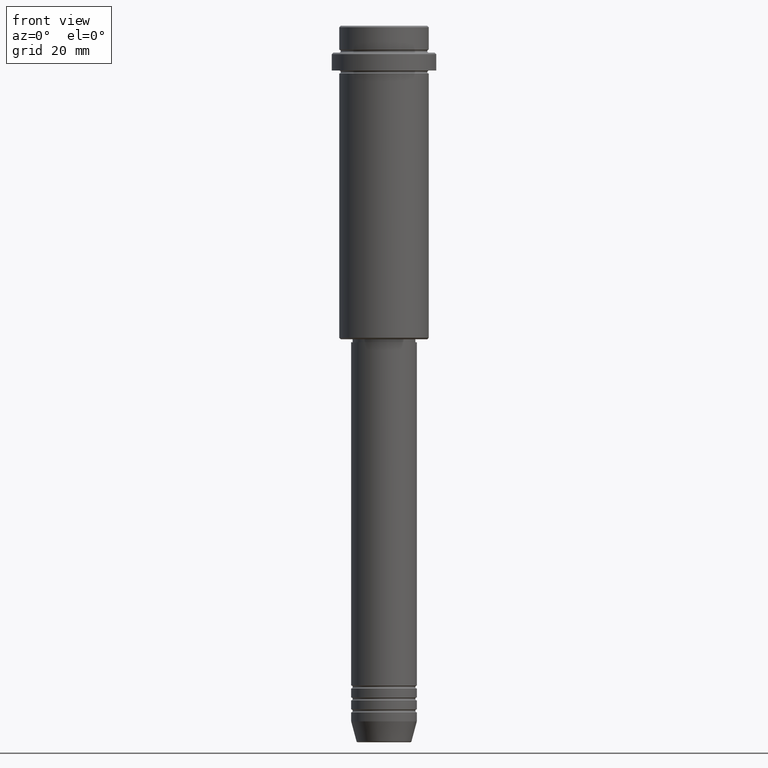
[diagram: clean part render]
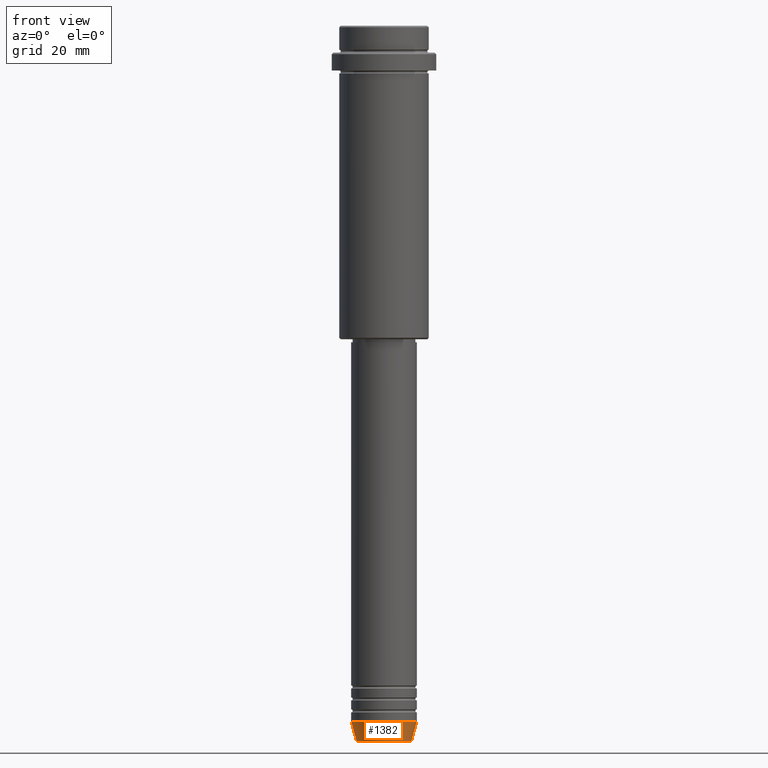
[diagram: same view with one face highlighted and labeled with its STEP entity id]
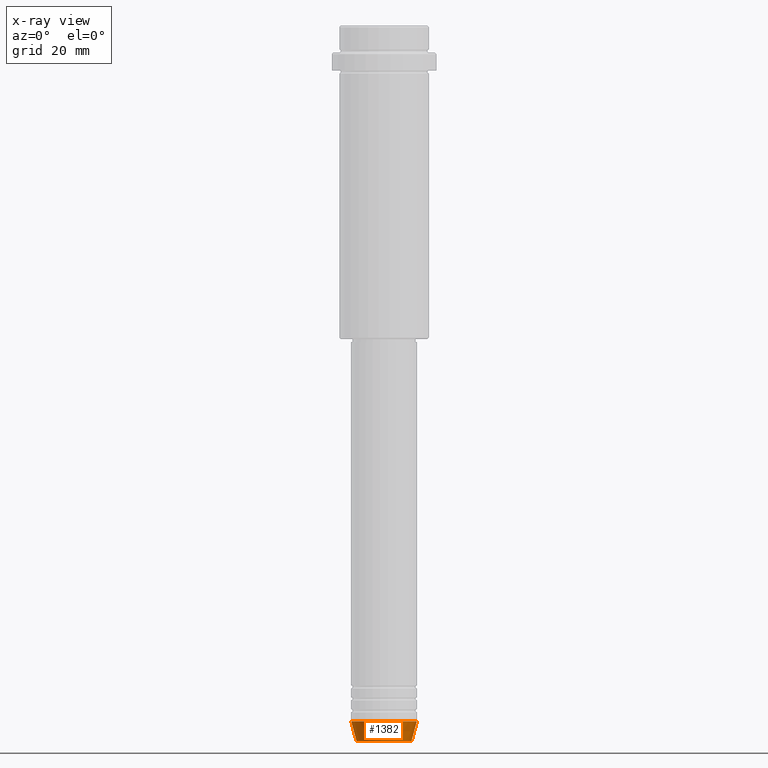
[diagram: x-ray of the same camera — body ghosted, the highlighted face saturated]
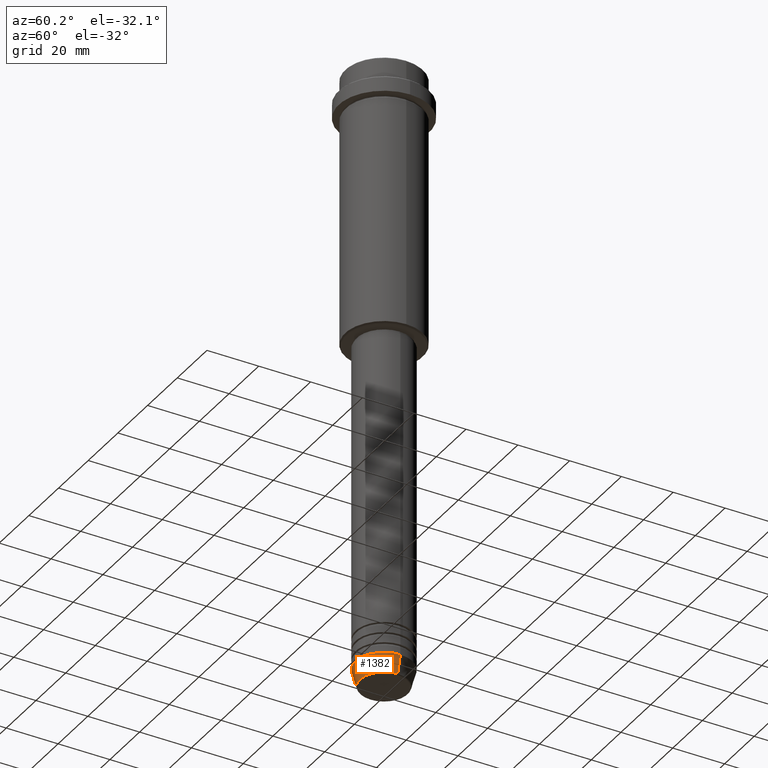
[diagram: same view with one face highlighted and labeled with its STEP entity id]
A machine part, front view. The second image highlights one B-rep face of the part: STEP entity #1382.
The next image is the same camera in x-ray: the body ghosted, the highlighted face saturated — about 0% of this face is hidden behind the body in this view.
A second angle (auxiliary view) of the same face is appended — the face is thin or edge-on in the first view.
In plain terms, the highlighted conical surface has half-angle 15 deg.
Its self-contained STEP definition (entity closure, byte-faithful):
#44 = CARTESIAN_POINT ( 'NONE',  ( 0.000000000000000000, 0.000000000000000000, -233.0000000000000284 ) ) ;
#83 = CARTESIAN_POINT ( 'NONE',  ( -11.00000000000000000, 1.347111479062088405E-15, -233.0000000000000284 ) ) ;
#192 = VERTEX_POINT ( 'NONE', #834 ) ;
#223 = EDGE_CURVE ( 'NONE', #521, #813, #640, .T. ) ;
#301 = EDGE_LOOP ( 'NONE', ( #1130, #439, #979, #459 ) ) ;
#337 = CARTESIAN_POINT ( 'NONE',  ( 0.000000000000000000, 0.000000000000000000, -233.0000000000000284 ) ) ;
#359 = AXIS2_PLACEMENT_3D ( 'NONE', #44, #616, #1263 ) ;
#367 = CARTESIAN_POINT ( 'NONE',  ( -11.00000000000000000, 1.347111479062088405E-15, -233.0000000000000284 ) ) ;
#397 = CARTESIAN_POINT ( 'NONE',  ( -9.223655072137201927, 1.238341722557647793E-15, -239.6294095225512990 ) ) ;
#439 = ORIENTED_EDGE ( 'NONE', *, *, #647, .T. ) ;
#459 = ORIENTED_EDGE ( 'NONE', *, *, #1126, .F. ) ;
#521 = VERTEX_POINT ( 'NONE', #397 ) ;
#531 = LINE ( 'NONE', #760, #1230 ) ;
#537 = DIRECTION ( 'NONE',  ( -0.2588190451025205174, 3.169619151431761243E-17, 0.9659258262890684232 ) ) ;
#582 = CIRCLE ( 'NONE', #1013, 9.223655072137201927 ) ;
#616 = DIRECTION ( 'NONE',  ( -0.000000000000000000, -0.000000000000000000, 1.000000000000000000 ) ) ;
#640 = LINE ( 'NONE', #83, #1070 ) ;
#647 = EDGE_CURVE ( 'NONE', #521, #192, #582, .T. ) ;
#659 = CARTESIAN_POINT ( 'NONE',  ( 11.00000000000000000, 0.000000000000000000, -233.0000000000000284 ) ) ;
#760 = CARTESIAN_POINT ( 'NONE',  ( 11.00000000000000000, 0.000000000000000000, -233.0000000000000284 ) ) ;
#770 = EDGE_CURVE ( 'NONE', #192, #1135, #531, .T. ) ;
#813 = VERTEX_POINT ( 'NONE', #367 ) ;
#815 = FACE_OUTER_BOUND ( 'NONE', #301, .T. ) ;
#834 = CARTESIAN_POINT ( 'NONE',  ( 9.223655072137201927, 0.000000000000000000, -239.6294095225512990 ) ) ;
#966 = DIRECTION ( 'NONE',  ( 0.2588190451025205174, 0.000000000000000000, 0.9659258262890684232 ) ) ;
#979 = ORIENTED_EDGE ( 'NONE', *, *, #770, .T. ) ;
#1013 = AXIS2_PLACEMENT_3D ( 'NONE', #1177, #1184, #1402 ) ;
#1070 = VECTOR ( 'NONE', #537, 1000.000000000000114 ) ;
#1082 = DIRECTION ( 'NONE',  ( 1.000000000000000000, 0.000000000000000000, 0.000000000000000000 ) ) ;
#1122 = CONICAL_SURFACE ( 'NONE', #359, 11.00000000000000000, 0.2617993877991491303 ) ;
#1126 = EDGE_CURVE ( 'NONE', #813, #1135, #1303, .T. ) ;
#1130 = ORIENTED_EDGE ( 'NONE', *, *, #223, .F. ) ;
#1135 = VERTEX_POINT ( 'NONE', #659 ) ;
#1166 = AXIS2_PLACEMENT_3D ( 'NONE', #337, #1395, #1082 ) ;
#1177 = CARTESIAN_POINT ( 'NONE',  ( 0.000000000000000000, 0.000000000000000000, -239.6294095225512990 ) ) ;
#1184 = DIRECTION ( 'NONE',  ( -0.000000000000000000, -0.000000000000000000, 1.000000000000000000 ) ) ;
#1230 = VECTOR ( 'NONE', #966, 1000.000000000000114 ) ;
#1263 = DIRECTION ( 'NONE',  ( 1.000000000000000000, 0.000000000000000000, 0.000000000000000000 ) ) ;
#1303 = CIRCLE ( 'NONE', #1166, 11.00000000000000000 ) ;
#1382 = ADVANCED_FACE ( 'NONE', ( #815 ), #1122, .T. ) ;
#1395 = DIRECTION ( 'NONE',  ( -0.000000000000000000, -0.000000000000000000, 1.000000000000000000 ) ) ;
#1402 = DIRECTION ( 'NONE',  ( 1.000000000000000000, 0.000000000000000000, 0.000000000000000000 ) ) ;